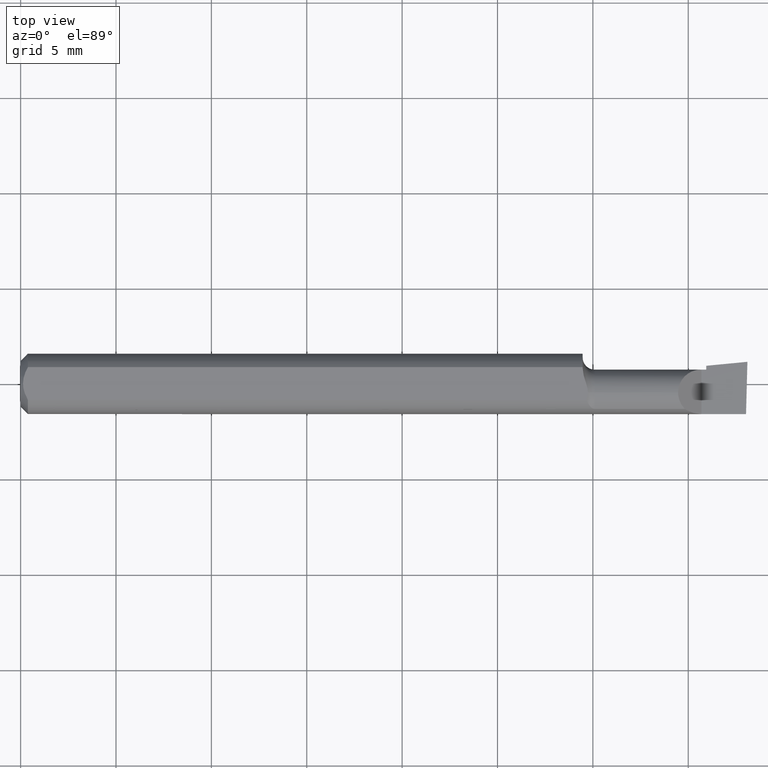
[diagram: clean part render]
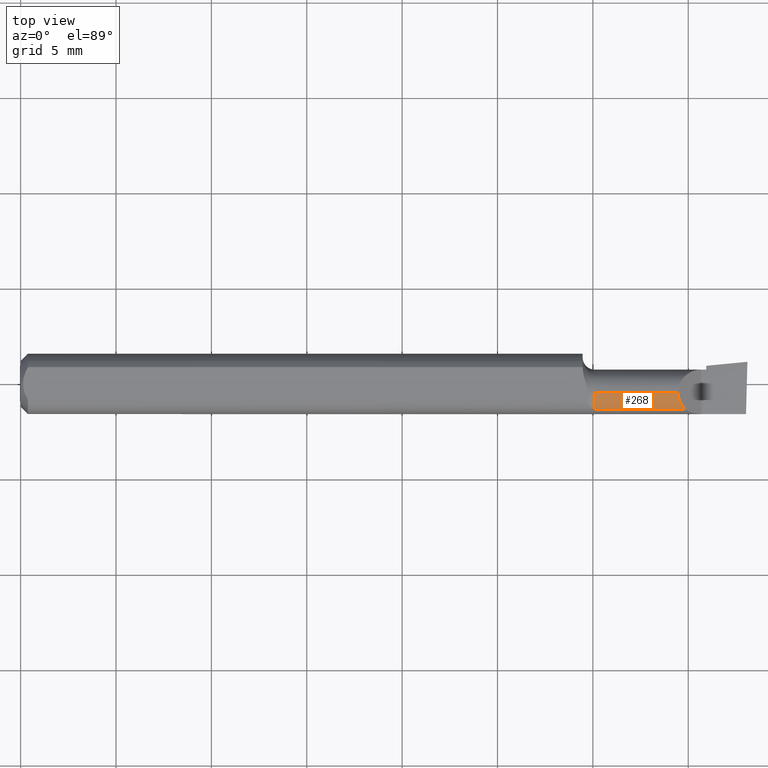
[diagram: same view with one face highlighted and labeled with its STEP entity id]
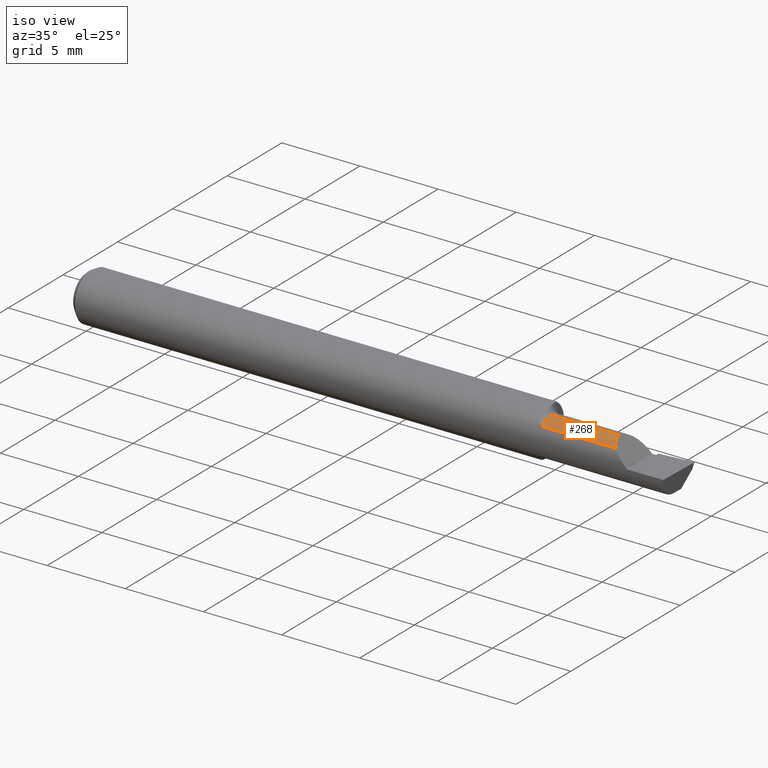
[diagram: same view with one face highlighted and labeled with its STEP entity id]
A machine part, top view. The second image highlights one B-rep face of the part: STEP entity #268.
A second angle (iso view) of the same face is appended — the face is thin or edge-on in the first view.
In plain terms, the highlighted cylindrical surface (edge-blend (fillet) strip) has radius 1.2205 mm, axis along (-1, -0, -0).
Its self-contained STEP definition (entity closure, byte-faithful):
#2 = CARTESIAN_POINT ( 'NONE',  ( 1.356949999999999656, -0.03117368152160956279, 0.04804999999999998161 ) ) ;
#57 = CARTESIAN_POINT ( 'NONE',  ( 1.356949999999999878, -0.01839999999999999969, 0.04804999999999998161 ) ) ;
#63 = CARTESIAN_POINT ( 'NONE',  ( 1.356949999999999878, -0.01839999999999999969, 0.04804999999999998161 ) ) ;
#128 = VERTEX_POINT ( 'NONE', #63 ) ;
#146 = CARTESIAN_POINT ( 'NONE',  ( 1.361790413321597892, -0.04299473640227081950, 0.04320958667840184286 ) ) ;
#161 = CARTESIAN_POINT ( 'NONE',  ( 1.185000000000000275, -0.01839999999999999969, 0.0000000000000000000 ) ) ;
#177 = CARTESIAN_POINT ( 'NONE',  ( 1.185000000000000275, -0.01839999999999999969, 0.04804999999999996774 ) ) ;
#233 = EDGE_CURVE ( 'NONE', #128, #247, #537, .T. ) ;
#244 = LINE ( 'NONE', #398, #407 ) ;
#247 = VERTEX_POINT ( 'NONE', #177 ) ;
#268 = ADVANCED_FACE ( 'NONE', ( #431 ), #516, .T. ) ;
#300 = VERTEX_POINT ( 'NONE', #363 ) ;
#350 = DIRECTION ( 'NONE',  ( -1.000000000000000000, -0.0000000000000000000, -0.0000000000000000000 ) ) ;
#353 = CARTESIAN_POINT ( 'NONE',  ( 0.0000000000000000000, -0.01839999999999999969, 0.04804999999999998161 ) ) ;
#363 = CARTESIAN_POINT ( 'NONE',  ( 1.370749270080770632, -0.05210000000000018783, 0.03425072991922922805 ) ) ;
#365 = ORIENTED_EDGE ( 'NONE', *, *, #653, .T. ) ;
#378 = VECTOR ( 'NONE', #350, 39.37007874015748143 ) ;
#379 = ORIENTED_EDGE ( 'NONE', *, *, #233, .T. ) ;
#381 = CARTESIAN_POINT ( 'NONE',  ( 1.185000000000000275, -0.05210000000000007681, 0.03425072991922933213 ) ) ;
#398 = CARTESIAN_POINT ( 'NONE',  ( 1.300000000000000044, -0.05210000000000004211, 0.03425072991922938764 ) ) ;
#399 =( BOUNDED_CURVE ( )  B_SPLINE_CURVE ( 3, ( #430, #146, #2, #57 ),
 .UNSPECIFIED., .F., .T. ) 
 B_SPLINE_CURVE_WITH_KNOTS ( ( 4, 4 ),
 ( 5.505891808168994039, 6.283185307179586232 ),
 .UNSPECIFIED. ) 
 CURVE ( )  GEOMETRIC_REPRESENTATION_ITEM ( )  RATIONAL_B_SPLINE_CURVE ( ( 1.000000000000000000, 0.9502818019828902507, 0.9502818019828902507, 1.000000000000000000 ) ) 
 REPRESENTATION_ITEM ( '' )  );
#407 = VECTOR ( 'NONE', #410, 39.37007874015748143 ) ;
#410 = DIRECTION ( 'NONE',  ( 1.000000000000000000, 0.0000000000000000000, 0.0000000000000000000 ) ) ;
#430 = CARTESIAN_POINT ( 'NONE',  ( 1.370749270080770632, -0.05210000000000018783, 0.03425072991922922805 ) ) ;
#431 = FACE_OUTER_BOUND ( 'NONE', #615, .T. ) ;
#436 = DIRECTION ( 'NONE',  ( -1.000000000000000000, -0.0000000000000000000, -0.0000000000000000000 ) ) ;
#443 = ORIENTED_EDGE ( 'NONE', *, *, #484, .F. ) ;
#453 = EDGE_CURVE ( 'NONE', #300, #128, #399, .T. ) ;
#484 = EDGE_CURVE ( 'NONE', #519, #247, #630, .T. ) ;
#489 = AXIS2_PLACEMENT_3D ( 'NONE', #161, #436, #607 ) ;
#500 = AXIS2_PLACEMENT_3D ( 'NONE', #530, #523, #580 ) ;
#516 = CYLINDRICAL_SURFACE ( 'NONE', #500, 0.04804999999999998161 ) ;
#519 = VERTEX_POINT ( 'NONE', #381 ) ;
#523 = DIRECTION ( 'NONE',  ( -1.000000000000000000, -0.0000000000000000000, -0.0000000000000000000 ) ) ;
#530 = CARTESIAN_POINT ( 'NONE',  ( 0.0000000000000000000, -0.01839999999999999969, 0.0000000000000000000 ) ) ;
#537 = LINE ( 'NONE', #353, #378 ) ;
#580 = DIRECTION ( 'NONE',  ( 0.0000000000000000000, 0.0000000000000000000, 1.000000000000000000 ) ) ;
#607 = DIRECTION ( 'NONE',  ( 0.0000000000000000000, 0.0000000000000000000, 1.000000000000000000 ) ) ;
#615 = EDGE_LOOP ( 'NONE', ( #632, #379, #443, #365 ) ) ;
#630 = CIRCLE ( 'NONE', #489, 0.04804999999999996774 ) ;
#632 = ORIENTED_EDGE ( 'NONE', *, *, #453, .T. ) ;
#653 = EDGE_CURVE ( 'NONE', #519, #300, #244, .T. ) ;